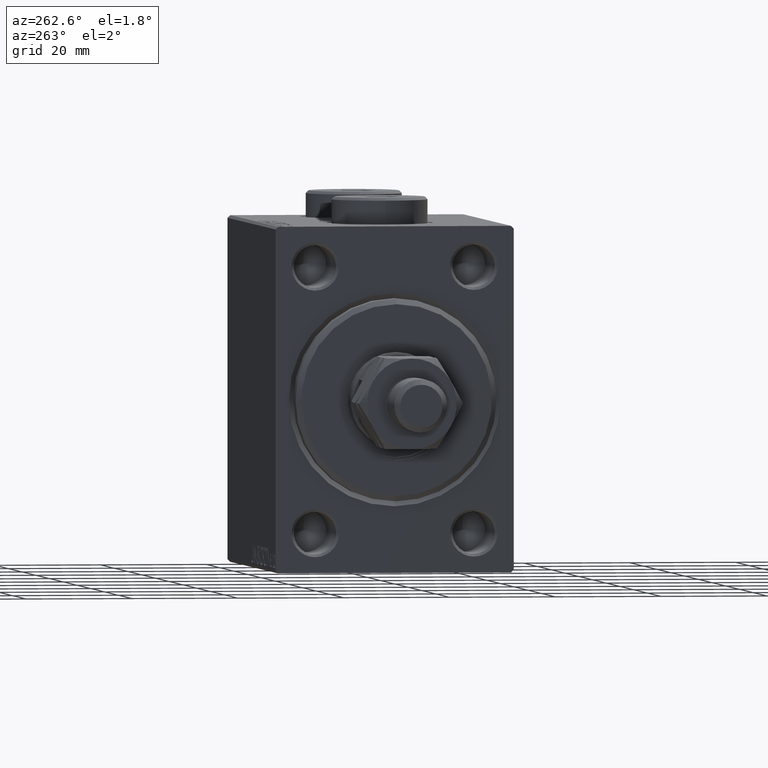
[diagram: clean part render]
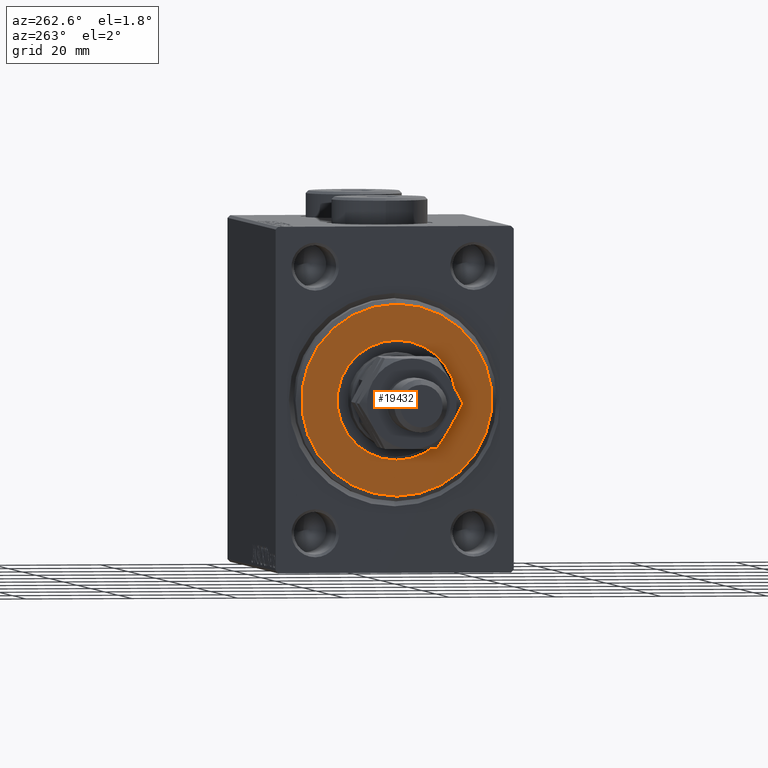
[diagram: same view with one face highlighted and labeled with its STEP entity id]
A machine part, auxiliary view. The second image highlights one B-rep face of the part: STEP entity #19432.
In plain terms, the highlighted planar face has unit normal (-1, 0, 0).
Its self-contained STEP definition (entity closure, byte-faithful):
#686 = DIRECTION ( 'NONE',  ( 0.000000000000000000, 0.000000000000000000, -1.000000000000000000 ) ) ;
#758 = DIRECTION ( 'NONE',  ( 0.000000000000000000, 0.000000000000000000, -1.000000000000000000 ) ) ;
#1876 = CARTESIAN_POINT ( 'NONE',  ( 3.000000000000000000, 2.265596578422603002E-15, -17.99999999999999645 ) ) ;
#3098 = CIRCLE ( 'NONE', #41181, 11.25000000000000178 ) ;
#5614 = EDGE_CURVE ( 'NONE', #41100, #42770, #3098, .T. ) ;
#11709 = CIRCLE ( 'NONE', #46000, 17.99999999999999645 ) ;
#12836 = DIRECTION ( 'NONE',  ( 0.000000000000000000, 0.000000000000000000, -1.000000000000000000 ) ) ;
#13995 = DIRECTION ( 'NONE',  ( 1.000000000000000000, -0.000000000000000000, 0.000000000000000000 ) ) ;
#14330 = EDGE_CURVE ( 'NONE', #33831, #25694, #11709, .T. ) ;
#14821 = ORIENTED_EDGE ( 'NONE', *, *, #32760, .T. ) ;
#16004 = EDGE_LOOP ( 'NONE', ( #42659, #14821 ) ) ;
#16198 = PLANE ( 'NONE',  #40271 ) ;
#16432 = FACE_OUTER_BOUND ( 'NONE', #16004, .T. ) ;
#17295 = ORIENTED_EDGE ( 'NONE', *, *, #5614, .F. ) ;
#18393 = DIRECTION ( 'NONE',  ( 1.000000000000000000, -0.000000000000000000, 0.000000000000000000 ) ) ;
#18455 = CARTESIAN_POINT ( 'NONE',  ( 3.000000000000000000, 0.000000000000000000, 0.000000000000000000 ) ) ;
#19432 = ADVANCED_FACE ( 'NONE', ( #16432, #38602 ), #16198, .T. ) ;
#19785 = DIRECTION ( 'NONE',  ( 1.000000000000000000, -0.000000000000000000, 0.000000000000000000 ) ) ;
#20022 = CARTESIAN_POINT ( 'NONE',  ( 3.000000000000000000, 0.000000000000000000, 0.000000000000000000 ) ) ;
#20073 = CIRCLE ( 'NONE', #46746, 11.25000000000000178 ) ;
#23571 = ORIENTED_EDGE ( 'NONE', *, *, #35121, .F. ) ;
#25694 = VERTEX_POINT ( 'NONE', #1876 ) ;
#25978 = CARTESIAN_POINT ( 'NONE',  ( 3.000000000000000000, 0.000000000000000000, 17.99999999999999645 ) ) ;
#26424 = CARTESIAN_POINT ( 'NONE',  ( 3.000000000000000000, 0.000000000000000000, -11.25000000000000178 ) ) ;
#32203 = CIRCLE ( 'NONE', #32947, 17.99999999999999645 ) ;
#32760 = EDGE_CURVE ( 'NONE', #25694, #33831, #32203, .T. ) ;
#32947 = AXIS2_PLACEMENT_3D ( 'NONE', #35701, #13995, #39995 ) ;
#32992 = DIRECTION ( 'NONE',  ( 1.000000000000000000, 0.000000000000000000, 0.000000000000000000 ) ) ;
#33399 = CARTESIAN_POINT ( 'NONE',  ( 3.000000000000000000, 0.000000000000000000, 0.000000000000000000 ) ) ;
#33831 = VERTEX_POINT ( 'NONE', #25978 ) ;
#34279 = DIRECTION ( 'NONE',  ( 1.000000000000000000, 0.000000000000000000, 0.000000000000000000 ) ) ;
#35121 = EDGE_CURVE ( 'NONE', #42770, #41100, #20073, .T. ) ;
#35701 = CARTESIAN_POINT ( 'NONE',  ( 3.000000000000000000, 0.000000000000000000, 0.000000000000000000 ) ) ;
#36095 = CARTESIAN_POINT ( 'NONE',  ( 3.000000000000000000, 1.377727649040772586E-15, 11.25000000000000178 ) ) ;
#37389 = CARTESIAN_POINT ( 'NONE',  ( 3.000000000000000000, 0.000000000000000000, 0.000000000000000000 ) ) ;
#38602 = FACE_BOUND ( 'NONE', #40238, .T. ) ;
#39995 = DIRECTION ( 'NONE',  ( 0.000000000000000000, 0.000000000000000000, -1.000000000000000000 ) ) ;
#40238 = EDGE_LOOP ( 'NONE', ( #17295, #23571 ) ) ;
#40271 = AXIS2_PLACEMENT_3D ( 'NONE', #20022, #19785, #12836 ) ;
#41100 = VERTEX_POINT ( 'NONE', #26424 ) ;
#41181 = AXIS2_PLACEMENT_3D ( 'NONE', #18455, #32992, #43504 ) ;
#42659 = ORIENTED_EDGE ( 'NONE', *, *, #14330, .T. ) ;
#42770 = VERTEX_POINT ( 'NONE', #36095 ) ;
#43504 = DIRECTION ( 'NONE',  ( 0.000000000000000000, 0.000000000000000000, -1.000000000000000000 ) ) ;
#46000 = AXIS2_PLACEMENT_3D ( 'NONE', #33399, #18393, #758 ) ;
#46746 = AXIS2_PLACEMENT_3D ( 'NONE', #37389, #34279, #686 ) ;